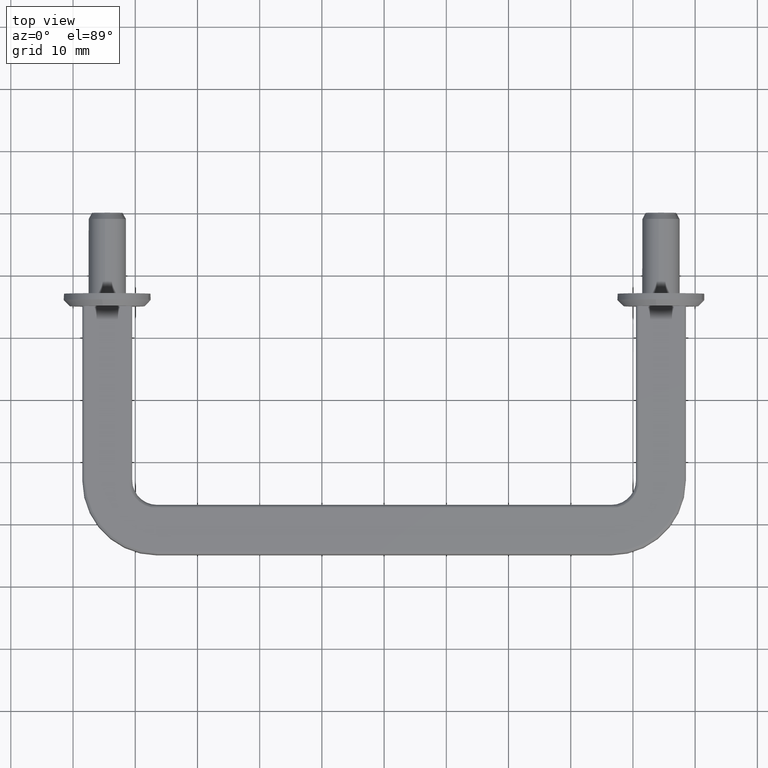
[diagram: clean part render]
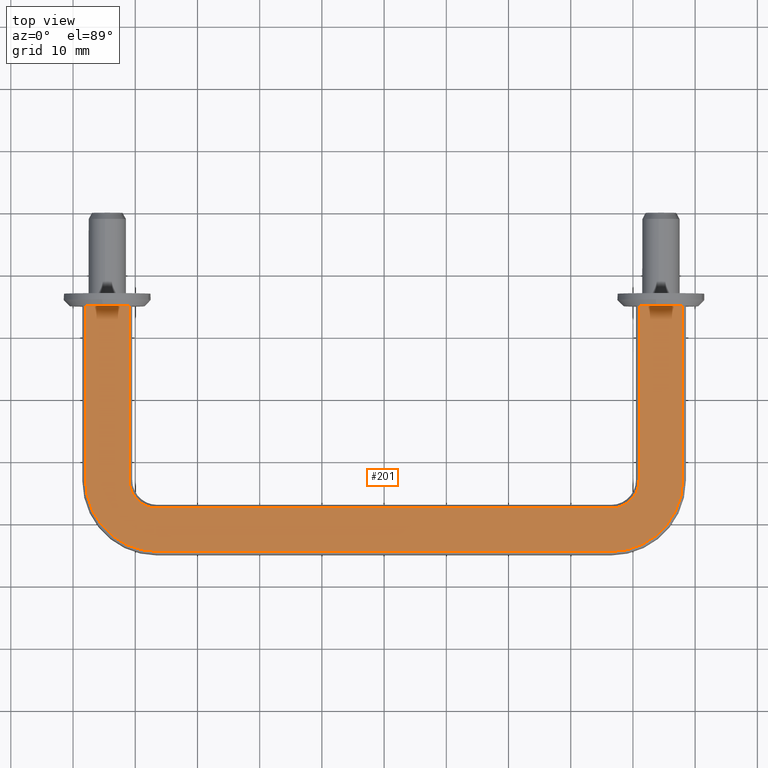
[diagram: same view with one face highlighted and labeled with its STEP entity id]
A machine part, top view. The second image highlights one B-rep face of the part: STEP entity #201.
In plain terms, the highlighted planar face has unit normal (0, 0, 1).
Its self-contained STEP definition (entity closure, byte-faithful):
#201=ADVANCED_FACE('',(#558),#557,.T.);
#557=PLANE('',#1132);
#558=FACE_OUTER_BOUND('',#1133,.T.);
#1129=CARTESIAN_POINT('',(5.76000000000E+01,4.00000000000E+00,1.10500000000E+01));
#1130=DIRECTION('',(0.00000000000E+00,1.00000000000E+00,-0.00000000000E+00));
#1131=DIRECTION('',(-1.00000000000E+00,0.00000000000E+00,0.00000000000E+00));
#1132=AXIS2_PLACEMENT_3D('',#1129,#1130,#1131);
#1133=EDGE_LOOP('',(#1359,#1360,#1361,#1362,#1363,#1364,#1365,#1366,#1367,#1368,#1369,#1370));
#1359=ORIENTED_EDGE('',*,*,#1538,.T.);
#1360=ORIENTED_EDGE('',*,*,#1524,.T.);
#1361=ORIENTED_EDGE('',*,*,#1510,.T.);
#1362=ORIENTED_EDGE('',*,*,#1496,.T.);
#1363=ORIENTED_EDGE('',*,*,#1478,.T.);
#1364=ORIENTED_EDGE('',*,*,#1540,.F.);
#1365=ORIENTED_EDGE('',*,*,#1480,.F.);
#1366=ORIENTED_EDGE('',*,*,#1498,.F.);
#1367=ORIENTED_EDGE('',*,*,#1512,.F.);
#1368=ORIENTED_EDGE('',*,*,#1526,.F.);
#1369=ORIENTED_EDGE('',*,*,#1541,.F.);
#1370=ORIENTED_EDGE('',*,*,#1542,.T.);
#1478=EDGE_CURVE('',#1754,#1747,#1755,.T.);
#1480=EDGE_CURVE('',#1767,#1768,#1769,.T.);
#1496=EDGE_CURVE('',#1875,#1754,#1876,.T.);
#1498=EDGE_CURVE('',#1888,#1767,#1889,.T.);
#1510=EDGE_CURVE('',#1967,#1875,#1968,.T.);
#1512=EDGE_CURVE('',#1980,#1888,#1981,.T.);
#1524=EDGE_CURVE('',#2059,#1967,#2060,.T.);
#1526=EDGE_CURVE('',#2072,#1980,#2073,.T.);
#1538=EDGE_CURVE('',#2151,#2059,#2152,.T.);
#1540=EDGE_CURVE('',#1768,#1747,#2164,.T.);
#1541=EDGE_CURVE('',#2170,#2072,#2171,.T.);
#1542=EDGE_CURVE('',#2170,#2151,#2177,.T.);
#1747=VERTEX_POINT('',#2477);
#1754=VERTEX_POINT('',#2482);
#1755=LINE('',#2483,#2484);
#1767=VERTEX_POINT('',#2490);
#1768=VERTEX_POINT('',#2491);
#1769=LINE('',#2492,#2493);
#1875=VERTEX_POINT('',#2558);
#1876=CIRCLE('',#2562,1.15000000000E+01);
#1888=VERTEX_POINT('',#2567);
#1889=CIRCLE('',#2571,4.50000000000E+00);
#1967=VERTEX_POINT('',#2618);
#1968=LINE('',#2619,#2620);
#1980=VERTEX_POINT('',#2626);
#1981=LINE('',#2627,#2628);
#2059=VERTEX_POINT('',#2674);
#2060=CIRCLE('',#2678,1.15000000000E+01);
#2072=VERTEX_POINT('',#2683);
#2073=CIRCLE('',#2687,4.50000000000E+00);
#2151=VERTEX_POINT('',#2734);
#2152=LINE('',#2735,#2736);
#2164=LINE('',#2742,#2743);
#2170=VERTEX_POINT('',#2745);
#2171=LINE('',#2746,#2747);
#2177=LINE('',#2749,#2750);
#2477=CARTESIAN_POINT('',(4.80000000000E+01,4.00000000000E+00,1.50000000000E+01));
#2482=CARTESIAN_POINT('',(4.80000000000E+01,4.00000000000E+00,4.30000000000E+01));
#2483=CARTESIAN_POINT('',(4.80000000000E+01,4.00000000000E+00,4.30000000000E+01));
#2484=VECTOR('',#2485,2.80000000000E+01);
#2485=DIRECTION('',(0.00000000000E+00,-3.55271367880E-15,-1.00000000000E+00));
#2490=CARTESIAN_POINT('',(4.10000000000E+01,4.00000000000E+00,4.30000000000E+01));
#2491=CARTESIAN_POINT('',(4.10000000000E+01,4.00000000000E+00,1.50000000000E+01));
#2492=CARTESIAN_POINT('',(4.10000000000E+01,4.00000000000E+00,4.30000000000E+01));
#2493=VECTOR('',#2494,2.80000000000E+01);
#2494=DIRECTION('',(0.00000000000E+00,0.00000000000E+00,-1.00000000000E+00));
#2558=CARTESIAN_POINT('',(3.65000000000E+01,4.00000000000E+00,5.45000000000E+01));
#2559=CARTESIAN_POINT('',(3.65000000000E+01,4.00000000000E+00,4.30000000000E+01));
#2560=DIRECTION('',(8.19178674096E-16,1.00000000000E+00,7.72329060608E-17));
#2561=DIRECTION('',(-6.17863248487E-14,7.72329060609E-17,-1.00000000000E+00));
#2562=AXIS2_PLACEMENT_3D('',#2559,#2560,#2561);
#2567=CARTESIAN_POINT('',(3.65000000000E+01,4.00000000000E+00,4.75000000000E+01));
#2568=CARTESIAN_POINT('',(3.65000000000E+01,4.00000000000E+00,4.30000000000E+01));
#2569=DIRECTION('',(-0.00000000000E+00,1.00000000000E+00,0.00000000000E+00));
#2570=DIRECTION('',(-1.54740418010E-13,-0.00000000000E+00,-1.00000000000E+00));
#2571=AXIS2_PLACEMENT_3D('',#2568,#2569,#2570);
#2618=CARTESIAN_POINT('',(-3.65000000000E+01,4.00000000000E+00,5.45000000000E+01));
#2619=CARTESIAN_POINT('',(-3.65000000000E+01,4.00000000000E+00,5.45000000000E+01));
#2620=VECTOR('',#2621,7.30000000000E+01);
#2621=DIRECTION('',(1.00000000000E+00,0.00000000000E+00,0.00000000000E+00));
#2626=CARTESIAN_POINT('',(-3.65000000000E+01,4.00000000000E+00,4.75000000000E+01));
#2627=CARTESIAN_POINT('',(-3.65000000000E+01,4.00000000000E+00,4.75000000000E+01));
#2628=VECTOR('',#2629,7.30000000000E+01);
#2629=DIRECTION('',(1.00000000000E+00,0.00000000000E+00,0.00000000000E+00));
#2674=CARTESIAN_POINT('',(-4.80000000000E+01,4.00000000000E+00,4.30000000000E+01));
#2675=CARTESIAN_POINT('',(-3.65000000000E+01,4.00000000000E+00,4.30000000000E+01));
#2676=DIRECTION('',(0.00000000000E+00,1.00000000000E+00,0.00000000000E+00));
#2677=DIRECTION('',(1.00000000000E+00,-0.00000000000E+00,-5.86970086063E-14));
#2678=AXIS2_PLACEMENT_3D('',#2675,#2676,#2677);
#2683=CARTESIAN_POINT('',(-4.10000000000E+01,4.00000000000E+00,4.30000000000E+01));
#2684=CARTESIAN_POINT('',(-3.65000000000E+01,4.00000000000E+00,4.30000000000E+01));
#2685=DIRECTION('',(0.00000000000E+00,1.00000000000E+00,0.00000000000E+00));
#2686=DIRECTION('',(1.00000000000E+00,-0.00000000000E+00,-1.73688224297E-13));
#2687=AXIS2_PLACEMENT_3D('',#2684,#2685,#2686);
#2734=CARTESIAN_POINT('',(-4.80000000000E+01,4.00000000000E+00,1.50000000000E+01));
#2735=CARTESIAN_POINT('',(-4.80000000000E+01,4.00000000000E+00,1.50000000000E+01));
#2736=VECTOR('',#2737,2.80000000000E+01);
#2737=DIRECTION('',(0.00000000000E+00,0.00000000000E+00,1.00000000000E+00));
#2742=CARTESIAN_POINT('',(4.10000000000E+01,4.00000000000E+00,1.50000000000E+01));
#2743=VECTOR('',#2744,7.00000000000E+00);
#2744=DIRECTION('',(1.00000000000E+00,-1.42108547152E-14,0.00000000000E+00));
#2745=CARTESIAN_POINT('',(-4.10000000000E+01,4.00000000000E+00,1.50000000000E+01));
#2746=CARTESIAN_POINT('',(-4.10000000000E+01,4.00000000000E+00,1.50000000000E+01));
#2747=VECTOR('',#2748,2.80000000000E+01);
#2748=DIRECTION('',(0.00000000000E+00,0.00000000000E+00,1.00000000000E+00));
#2749=CARTESIAN_POINT('',(-4.10000000000E+01,4.00000000000E+00,1.50000000000E+01));
#2750=VECTOR('',#2751,7.00000000000E+00);
#2751=DIRECTION('',(-1.00000000000E+00,0.00000000000E+00,0.00000000000E+00));